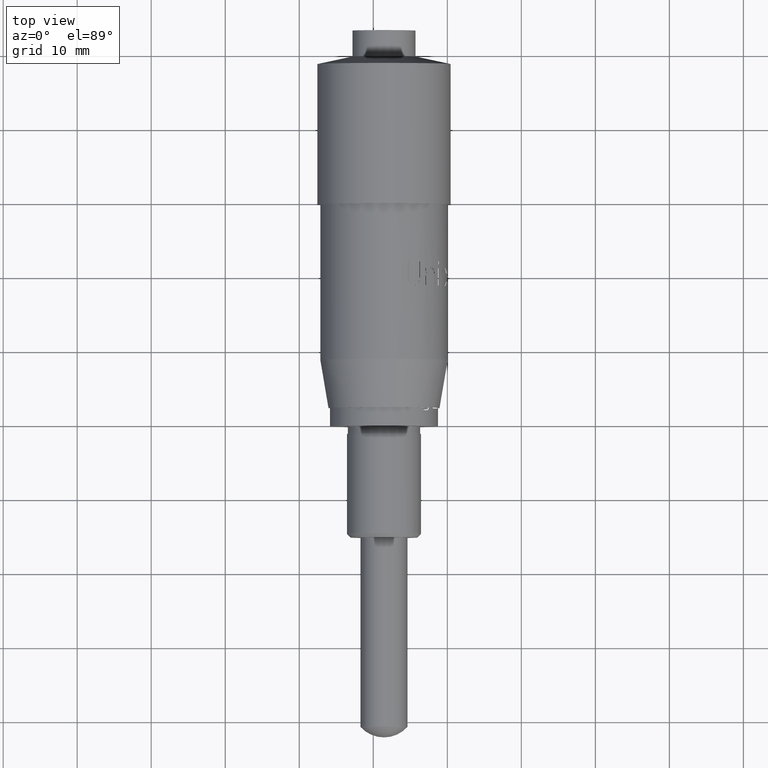
[diagram: clean part render]
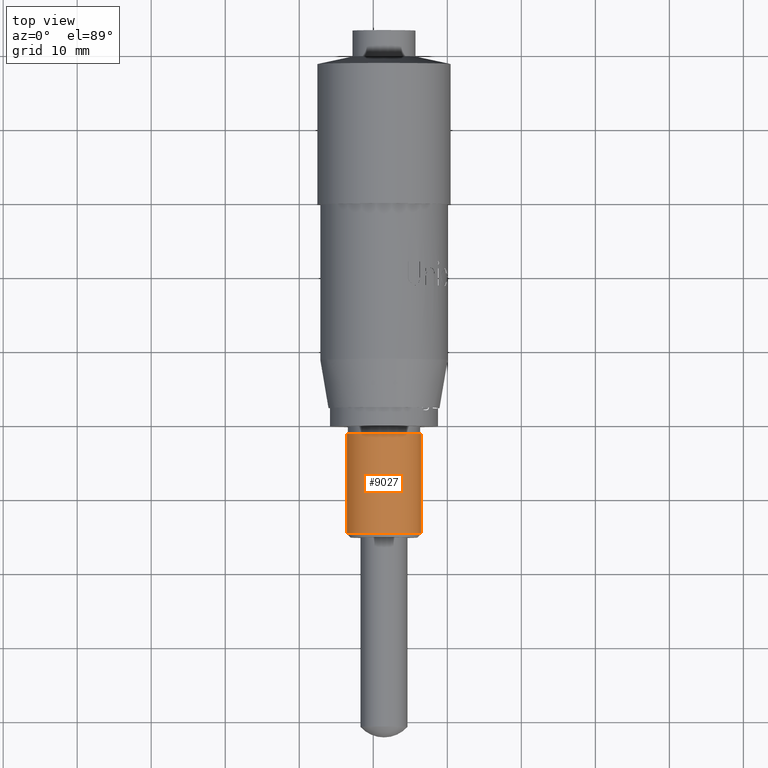
[diagram: same view with one face highlighted and labeled with its STEP entity id]
A machine part, top view. The second image highlights one B-rep face of the part: STEP entity #9027.
In plain terms, the highlighted cylindrical surface (partial cylindrical patch) has radius 5 mm, axis along (-0, 1, -0).
Its self-contained STEP definition (entity closure, byte-faithful):
#130 = DIRECTION ( 'NONE',  ( -1.058937486943302600E-016, 1.000000000000000000, -0.0000000000000000000 ) ) ;
#472 = CIRCLE ( 'NONE', #7691, 4.999999999999997300 ) ;
#568 = CYLINDRICAL_SURFACE ( 'NONE', #8326, 4.999999999999997300 ) ;
#717 = CARTESIAN_POINT ( 'NONE',  ( 36.44783534030352700, 5.329572553880832500, 23.47757420670093300 ) ) ;
#1080 = VERTEX_POINT ( 'NONE', #8595 ) ;
#1092 = ORIENTED_EDGE ( 'NONE', *, *, #7216, .T. ) ;
#1159 = DIRECTION ( 'NONE',  ( -1.058937486943297600E-016, 1.000000000000000000, -0.0000000000000000000 ) ) ;
#1260 = AXIS2_PLACEMENT_3D ( 'NONE', #6155, #1159, #6992 ) ;
#1427 = DIRECTION ( 'NONE',  ( -1.058937486943297600E-016, 1.000000000000000000, -0.0000000000000000000 ) ) ;
#1663 = VERTEX_POINT ( 'NONE', #2509 ) ;
#1780 = LINE ( 'NONE', #5037, #4027 ) ;
#2046 = EDGE_CURVE ( 'NONE', #9098, #1080, #1780, .T. ) ;
#2158 = ORIENTED_EDGE ( 'NONE', *, *, #4399, .T. ) ;
#2509 = CARTESIAN_POINT ( 'NONE',  ( 36.44783534030352700, 18.82957255388083000, 23.47757420670093300 ) ) ;
#2677 = CARTESIAN_POINT ( 'NONE',  ( 26.44783534030352700, 5.329572553880830700, 23.47757420670093300 ) ) ;
#2787 = CIRCLE ( 'NONE', #1260, 4.999999999999997300 ) ;
#3594 = VECTOR ( 'NONE', #1427, 1000.000000000000000 ) ;
#3846 = LINE ( 'NONE', #6415, #3594 ) ;
#3863 = ORIENTED_EDGE ( 'NONE', *, *, #2046, .F. ) ;
#3935 = VERTEX_POINT ( 'NONE', #717 ) ;
#4027 = VECTOR ( 'NONE', #6688, 1000.000000000000000 ) ;
#4277 = DIRECTION ( 'NONE',  ( -1.000000000000000000, 0.0000000000000000000, 0.0000000000000000000 ) ) ;
#4399 = EDGE_CURVE ( 'NONE', #3935, #1663, #3846, .T. ) ;
#4714 = EDGE_LOOP ( 'NONE', ( #1092, #2158, #5731, #3863 ) ) ;
#5037 = CARTESIAN_POINT ( 'NONE',  ( 26.44783534030352400, 75.87059562308844800, 23.47757420670093300 ) ) ;
#5135 = CARTESIAN_POINT ( 'NONE',  ( 31.44783534030352700, 5.329572553880831600, 23.47757420670093300 ) ) ;
#5731 = ORIENTED_EDGE ( 'NONE', *, *, #8642, .F. ) ;
#5953 = DIRECTION ( 'NONE',  ( 1.000000000000000000, 1.734723475976808100E-016, 0.0000000000000000000 ) ) ;
#6155 = CARTESIAN_POINT ( 'NONE',  ( 31.44783534030352700, 18.82957255388083000, 23.47757420670093300 ) ) ;
#6415 = CARTESIAN_POINT ( 'NONE',  ( 36.44783534030352000, 75.87059562308844800, 23.47757420670093300 ) ) ;
#6688 = DIRECTION ( 'NONE',  ( -1.058937486943297600E-016, 1.000000000000000000, -0.0000000000000000000 ) ) ;
#6992 = DIRECTION ( 'NONE',  ( -1.000000000000000000, 0.0000000000000000000, 0.0000000000000000000 ) ) ;
#7216 = EDGE_CURVE ( 'NONE', #9098, #3935, #472, .T. ) ;
#7691 = AXIS2_PLACEMENT_3D ( 'NONE', #5135, #130, #5953 ) ;
#8017 = FACE_OUTER_BOUND ( 'NONE', #4714, .T. ) ;
#8326 = AXIS2_PLACEMENT_3D ( 'NONE', #9258, #10067, #4277 ) ;
#8595 = CARTESIAN_POINT ( 'NONE',  ( 26.44783534030353100, 18.82957255388083000, 23.47757420670093300 ) ) ;
#8642 = EDGE_CURVE ( 'NONE', #1080, #1663, #2787, .T. ) ;
#9027 = ADVANCED_FACE ( 'NONE', ( #8017 ), #568, .T. ) ;
#9098 = VERTEX_POINT ( 'NONE', #2677 ) ;
#9258 = CARTESIAN_POINT ( 'NONE',  ( 31.44783534030352400, 75.87059562308844800, 23.47757420670093300 ) ) ;
#10067 = DIRECTION ( 'NONE',  ( -1.058937486943297600E-016, 1.000000000000000000, -0.0000000000000000000 ) ) ;